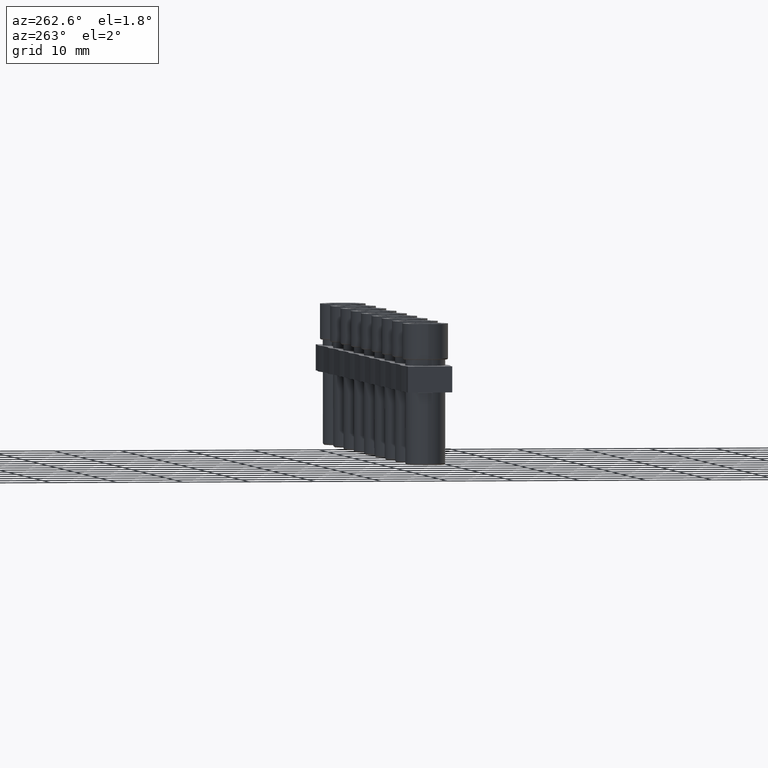
[diagram: clean part render]
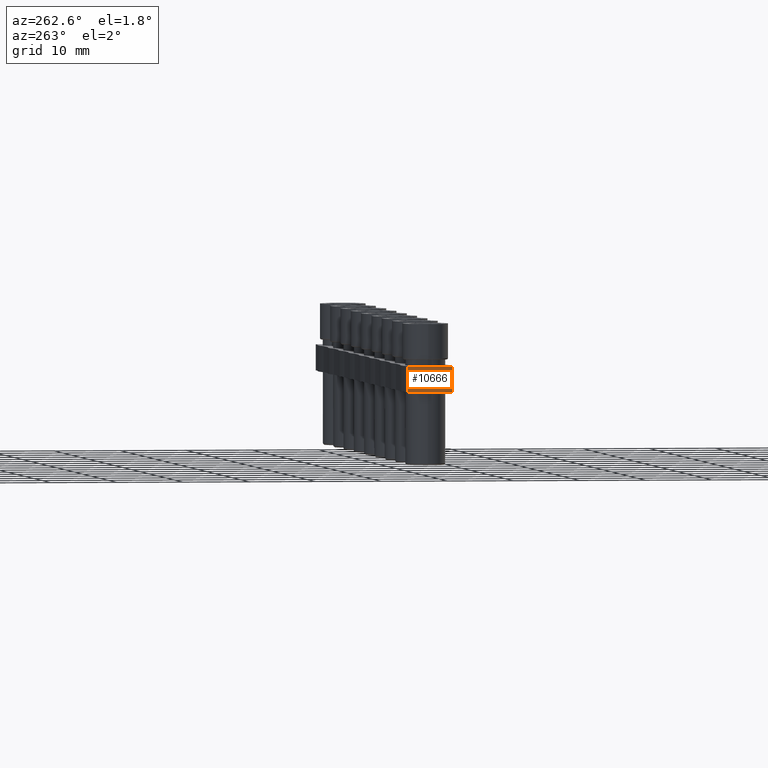
[diagram: same view with one face highlighted and labeled with its STEP entity id]
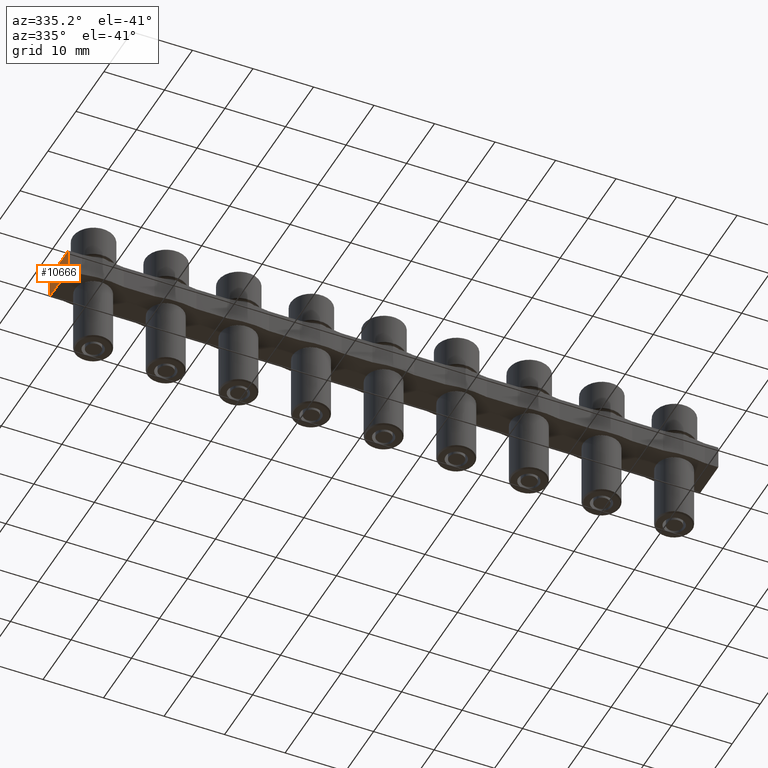
[diagram: same view with one face highlighted and labeled with its STEP entity id]
A machine part, auxiliary view. The second image highlights one B-rep face of the part: STEP entity #10666.
A second angle (auxiliary view) of the same face is appended — the face is thin or edge-on in the first view.
In plain terms, the highlighted planar face has unit normal (1, 0, -0).
Its self-contained STEP definition (entity closure, byte-faithful):
#570 = CARTESIAN_POINT ( 'NONE',  ( -89.70000000000000300, 3.350000000000068500, -0.9000000000000014700 ) ) ;
#667 = CARTESIAN_POINT ( 'NONE',  ( -89.70000000000000300, -3.349999999999933900, -4.800000000000001600 ) ) ;
#739 = CARTESIAN_POINT ( 'NONE',  ( -89.70000000000000300, 3.350000000000068500, -4.800000000000001600 ) ) ;
#746 = CARTESIAN_POINT ( 'NONE',  ( -89.70000000000000300, -3.349999999999932600, -0.9000000000000014700 ) ) ;
#1890 = EDGE_CURVE ( 'NONE', #5207, #5299, #3832, .T. ) ;
#1932 = EDGE_CURVE ( 'NONE', #5285, #5273, #3872, .T. ) ;
#2177 = ORIENTED_EDGE ( 'NONE', *, *, #1932, .F. ) ;
#2192 = ORIENTED_EDGE ( 'NONE', *, *, #1890, .T. ) ;
#2204 = ORIENTED_EDGE ( 'NONE', *, *, #11388, .F. ) ;
#2230 = ORIENTED_EDGE ( 'NONE', *, *, #11328, .F. ) ;
#2868 = EDGE_LOOP ( 'NONE', ( #2192, #2204, #2177, #2230 ) ) ;
#3832 = LINE ( 'NONE', #3857, #8335 ) ;
#3857 = CARTESIAN_POINT ( 'NONE',  ( -89.70000000000000300, 3.350000000000068500, -4.800000000000001600 ) ) ;
#3867 = DIRECTION ( 'NONE',  ( 0.0000000000000000000, 0.0000000000000000000, -1.000000000000000000 ) ) ;
#3869 = DIRECTION ( 'NONE',  ( 0.0000000000000000000, 0.0000000000000000000, -1.000000000000000000 ) ) ;
#3872 = LINE ( 'NONE', #3904, #8363 ) ;
#3904 = CARTESIAN_POINT ( 'NONE',  ( -89.70000000000000300, -3.349999999999932600, -0.9000000000000014700 ) ) ;
#4719 = VECTOR ( 'NONE', #12336, 1000.000000000000000 ) ;
#4745 = VECTOR ( 'NONE', #12415, 1000.000000000000000 ) ;
#5207 = VERTEX_POINT ( 'NONE', #570 ) ;
#5273 = VERTEX_POINT ( 'NONE', #667 ) ;
#5285 = VERTEX_POINT ( 'NONE', #746 ) ;
#5299 = VERTEX_POINT ( 'NONE', #739 ) ;
#7479 = DIRECTION ( 'NONE',  ( -2.009125974575783600E-016, 1.000000000000000000, 0.0000000000000000000 ) ) ;
#7493 = DIRECTION ( 'NONE',  ( 1.000000000000000000, 2.009125974575783600E-016, -0.0000000000000000000 ) ) ;
#7497 = PLANE ( 'NONE',  #9259 ) ;
#7516 = FACE_OUTER_BOUND ( 'NONE', #2868, .T. ) ;
#7517 = CARTESIAN_POINT ( 'NONE',  ( -89.70000000000000300, 7.221084286606883400, -4.800000000000001600 ) ) ;
#8335 = VECTOR ( 'NONE', #3867, 1000.000000000000000 ) ;
#8363 = VECTOR ( 'NONE', #3869, 1000.000000000000000 ) ;
#9259 = AXIS2_PLACEMENT_3D ( 'NONE', #7517, #7493, #7479 ) ;
#10666 = ADVANCED_FACE ( 'NONE', ( #7516 ), #7497, .F. ) ;
#11328 = EDGE_CURVE ( 'NONE', #5207, #5285, #12309, .T. ) ;
#11388 = EDGE_CURVE ( 'NONE', #5273, #5299, #12380, .T. ) ;
#12309 = LINE ( 'NONE', #12324, #4719 ) ;
#12324 = CARTESIAN_POINT ( 'NONE',  ( -89.70000000000000300, -3.349999999999925900, -0.9000000000000014700 ) ) ;
#12336 = DIRECTION ( 'NONE',  ( 2.009125974575783600E-016, -1.000000000000000000, 0.0000000000000000000 ) ) ;
#12380 = LINE ( 'NONE', #12402, #4745 ) ;
#12402 = CARTESIAN_POINT ( 'NONE',  ( -89.70000000000000300, 7.221084286606883400, -4.800000000000001600 ) ) ;
#12415 = DIRECTION ( 'NONE',  ( -2.009125974575783600E-016, 1.000000000000000000, 0.0000000000000000000 ) ) ;